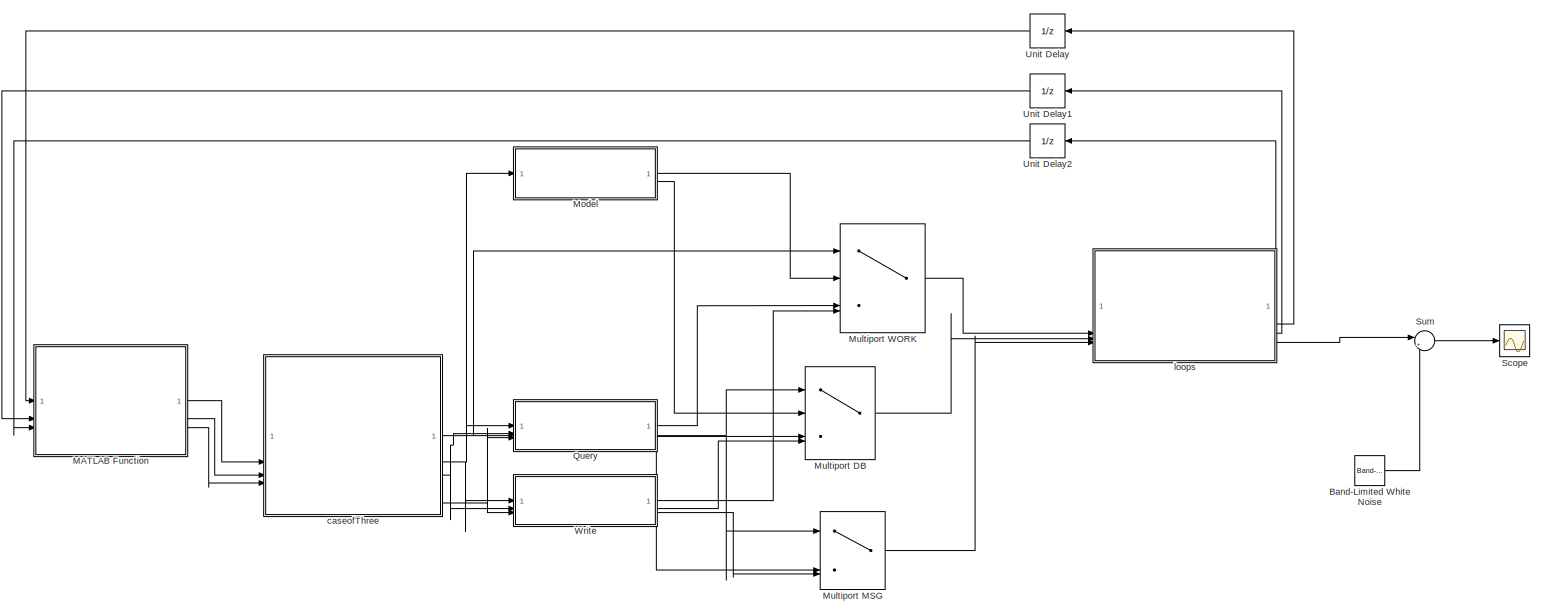
[diagram: root canvas - part 1/1, most of the canvas]
MODEL slx_a49e32c842e2
KIND model
CONFIG AbsTol = auto
CONFIG EnableMultiTasking = off
CONFIG FixedStep = auto
CONFIG MaxStep = auto
CONFIG MinStep = auto
CONFIG RelTol = 1e-3
CONFIG SampleTimeConstraint = Unconstrained
CONFIG SolverName = VariableStepAuto
CONFIG StartTime = 0.0
CONFIG StopTime = 10.0
BLOCK [Reference] Band-Limited White Noise  REF=simulink/Sources/Band-Limited
White Noise
  SourceBlock = simulink/Sources/Band-Limited\nWhite Noise
  SourceType = Band-Limited White Noise.
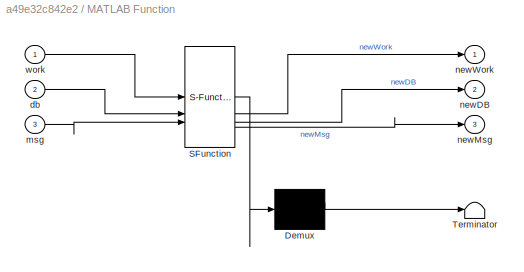
BLOCK [SubSystem] MATLAB Function
  ErrorFcn = Stateflow.Translate.translate
  PermitHierarchicalResolution = ExplicitOnly
  SFBlockType = MATLAB Function
  TreatAsAtomicUnit = on
BLOCK [Demux] MATLAB Function/ Demux 
  Outputs = 1
BLOCK [S-Function] MATLAB Function/ SFunction 
  EnableBusSupport = on
  FunctionName = sf_sfun
  PortCounts = [3 4]
  SFcnIsStateOwnerBlock = off
  SFunctionDeploymentMode = off
  Tag = Stateflow S-Function 1
BLOCK [Terminator] MATLAB Function/ Terminator 
BLOCK [Inport] MATLAB Function/db
  Port = 2
BLOCK [Inport] MATLAB Function/msg
  Port = 3
BLOCK [Outport] MATLAB Function/newDB
  Port = 2
BLOCK [Outport] MATLAB Function/newMsg
  Port = 3
BLOCK [Outport] MATLAB Function/newWork
BLOCK [Inport] MATLAB Function/work
BLOCK [ModelReference] Model
  ModelNameDialog = updateCase.slx
  ModelReferenceVersion = 1.5
BLOCK [MultiPortSwitch] Multiport DB
  InputSameDT = off
  SaturateOnIntegerOverflow = off
BLOCK [MultiPortSwitch] Multiport MSG
  InputSameDT = off
  SaturateOnIntegerOverflow = off
BLOCK [MultiPortSwitch] Multiport WORK
  InputSameDT = off
  SaturateOnIntegerOverflow = off
BLOCK [ModelReference] Query
  ModelNameDialog = querySplit.slx
  ModelReferenceVersion = 1.7
BLOCK [Scope] Scope
  Floating = off
  NumInputPorts = 1
  ScopeSpecificationString = Simulink.scopes.TimeScopeBlockCfg('CurrentConfiguration', extmgr.ConfigurationSet(extmgr.Configuration('Core','General UI',true),extmgr.Configuration('Core','Source UI',true),extmgr.Configuration('Sources','WiredSimulink',true),extmgr.Configuration('Visuals','Time Domain',true,'SerializedDisplays',{struct('MinYLimReal','-2.94144','MaxYLimReal','3.76225','YLabelReal','','MinYLimMag','0.00000','MaxY...<+1737ch>
BLOCK [Sum] Sum
  Inputs = |++
BLOCK [UnitDelay] Unit Delay
  HasFrameUpgradeWarning = on
  SampleTime = -1
BLOCK [UnitDelay] Unit Delay1
  HasFrameUpgradeWarning = on
  SampleTime = -1
BLOCK [UnitDelay] Unit Delay2
  HasFrameUpgradeWarning = on
  SampleTime = -1
BLOCK [ModelReference] Write
  ModelNameDialog = pardoWrite.slx
  ModelReferenceVersion = 1.7
BLOCK [ModelReference] caseofThree
  ModelNameDialog = firstCaseBlock.slx
  ModelReferenceVersion = 1.5
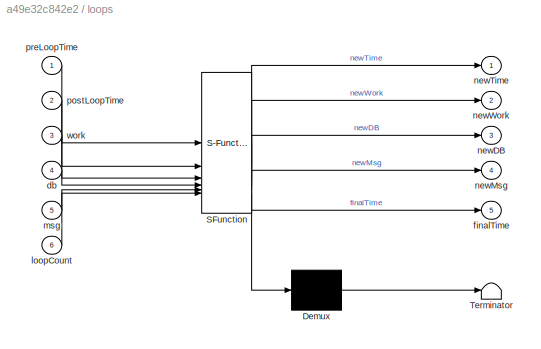
BLOCK [SubSystem] loops
  ErrorFcn = Stateflow.Translate.translate
  PermitHierarchicalResolution = ExplicitOnly
  SFBlockType = MATLAB Function
  TreatAsAtomicUnit = on
BLOCK [Demux] loops/ Demux 
  Outputs = 1
BLOCK [S-Function] loops/ SFunction 
  EnableBusSupport = on
  FunctionName = sf_sfun
  PortCounts = [6 6]
  SFcnIsStateOwnerBlock = off
  SFunctionDeploymentMode = off
  Tag = Stateflow S-Function 2
BLOCK [Terminator] loops/ Terminator 
BLOCK [Inport] loops/db
  Port = 4
BLOCK [Outport] loops/finalTime
  Port = 5
BLOCK [Inport] loops/loopCount
  Port = 6
BLOCK [Inport] loops/msg
  Port = 5
BLOCK [Outport] loops/newDB
  Port = 3
BLOCK [Outport] loops/newMsg
  Port = 4
BLOCK [Outport] loops/newTime
BLOCK [Outport] loops/newWork
  Port = 2
BLOCK [Inport] loops/postLoopTime
  Port = 2
BLOCK [Inport] loops/preLoopTime
BLOCK [Inport] loops/work
  Port = 3
LINE Band-Limited White Noise:1 -> Sum:2
LINE MATLAB Function:1 -> caseofThree:2
LINE MATLAB Function:2 -> caseofThree:3
LINE MATLAB Function:3 -> caseofThree:4
LINE Model:1 -> Multiport WORK:2
LINE Model:2 -> Multiport DB:2
LINE Multiport DB:1 -> loops:4
LINE Multiport MSG:1 -> loops:5
LINE Multiport WORK:1 -> loops:3
LINE Query:1 -> Multiport WORK:3
LINE Query:2 -> Multiport DB:3
LINE Query:3 -> Multiport MSG:3
LINE Sum:1 -> Scope:1
LINE Unit Delay1:1 -> MATLAB Function:2
LINE Unit Delay2:1 -> MATLAB Function:3
LINE Unit Delay:1 -> MATLAB Function:1
LINE Write:1 -> Multiport WORK:4
LINE Write:2 -> Multiport DB:4
LINE Write:3 -> Multiport MSG:4
NET caseofThree:1 -> Multiport DB:1, Multiport MSG:1, Multiport WORK:1
NET caseofThree:2 -> Model:1, Query:1, Write:1
NET caseofThree:3 -> Query:2, Write:2
NET caseofThree:4 -> Query:3, Write:3
LINE loops:2 -> Unit Delay:1
LINE loops:3 -> Unit Delay1:1
LINE loops:4 -> Unit Delay2:1
LINE loops:5 -> Sum:1
note: NET lines group one-source signal fan-out (src -> all destinations, sorted); 1:1 wires keep LINE
CHART MATLAB Function states=1 transitions=1
  STATE_LABEL 'eML_blk_kernel()'
  STATE_LABEL 'SCRIPT:\nfunction [newWork, newDB, newMsg] = initialize(work, db, msg)\n    workIncrement = 2;\n    dbIncrement = 1;\n    msgIncrement = 1;\n    \n    newWork = work + workIncrement;\n    newDB = db + dbIncrement;\n    newMsg = msg + msgIncrement;\nend\n'
CHART loops states=1 transitions=1
  STATE_LABEL 'eML_blk_kernel()'
  STATE_LABEL 'SCRIPT:\nfunction [newTime, newWork, newDB, newMsg, finalTime] = Loop(preLoopTime, postLoopTime, work, db, msg, loopCount)\n    newTime = preLoopTime + loopCount * (postLoopTime - preLoopTime);\n\n    workIncrement = 10;\n    dbIncrement = 20;\n    msgIncrement = 5;\n    \n    newWork = work + loopCount * workIncrement;\n    newDB = db + loopCount * dbIncrement;\n    newMsg = msg + loopCount * msgIncrement;...<+496ch>'
CHART  states=0 transitions=0
CHART  states=0 transitions=0
